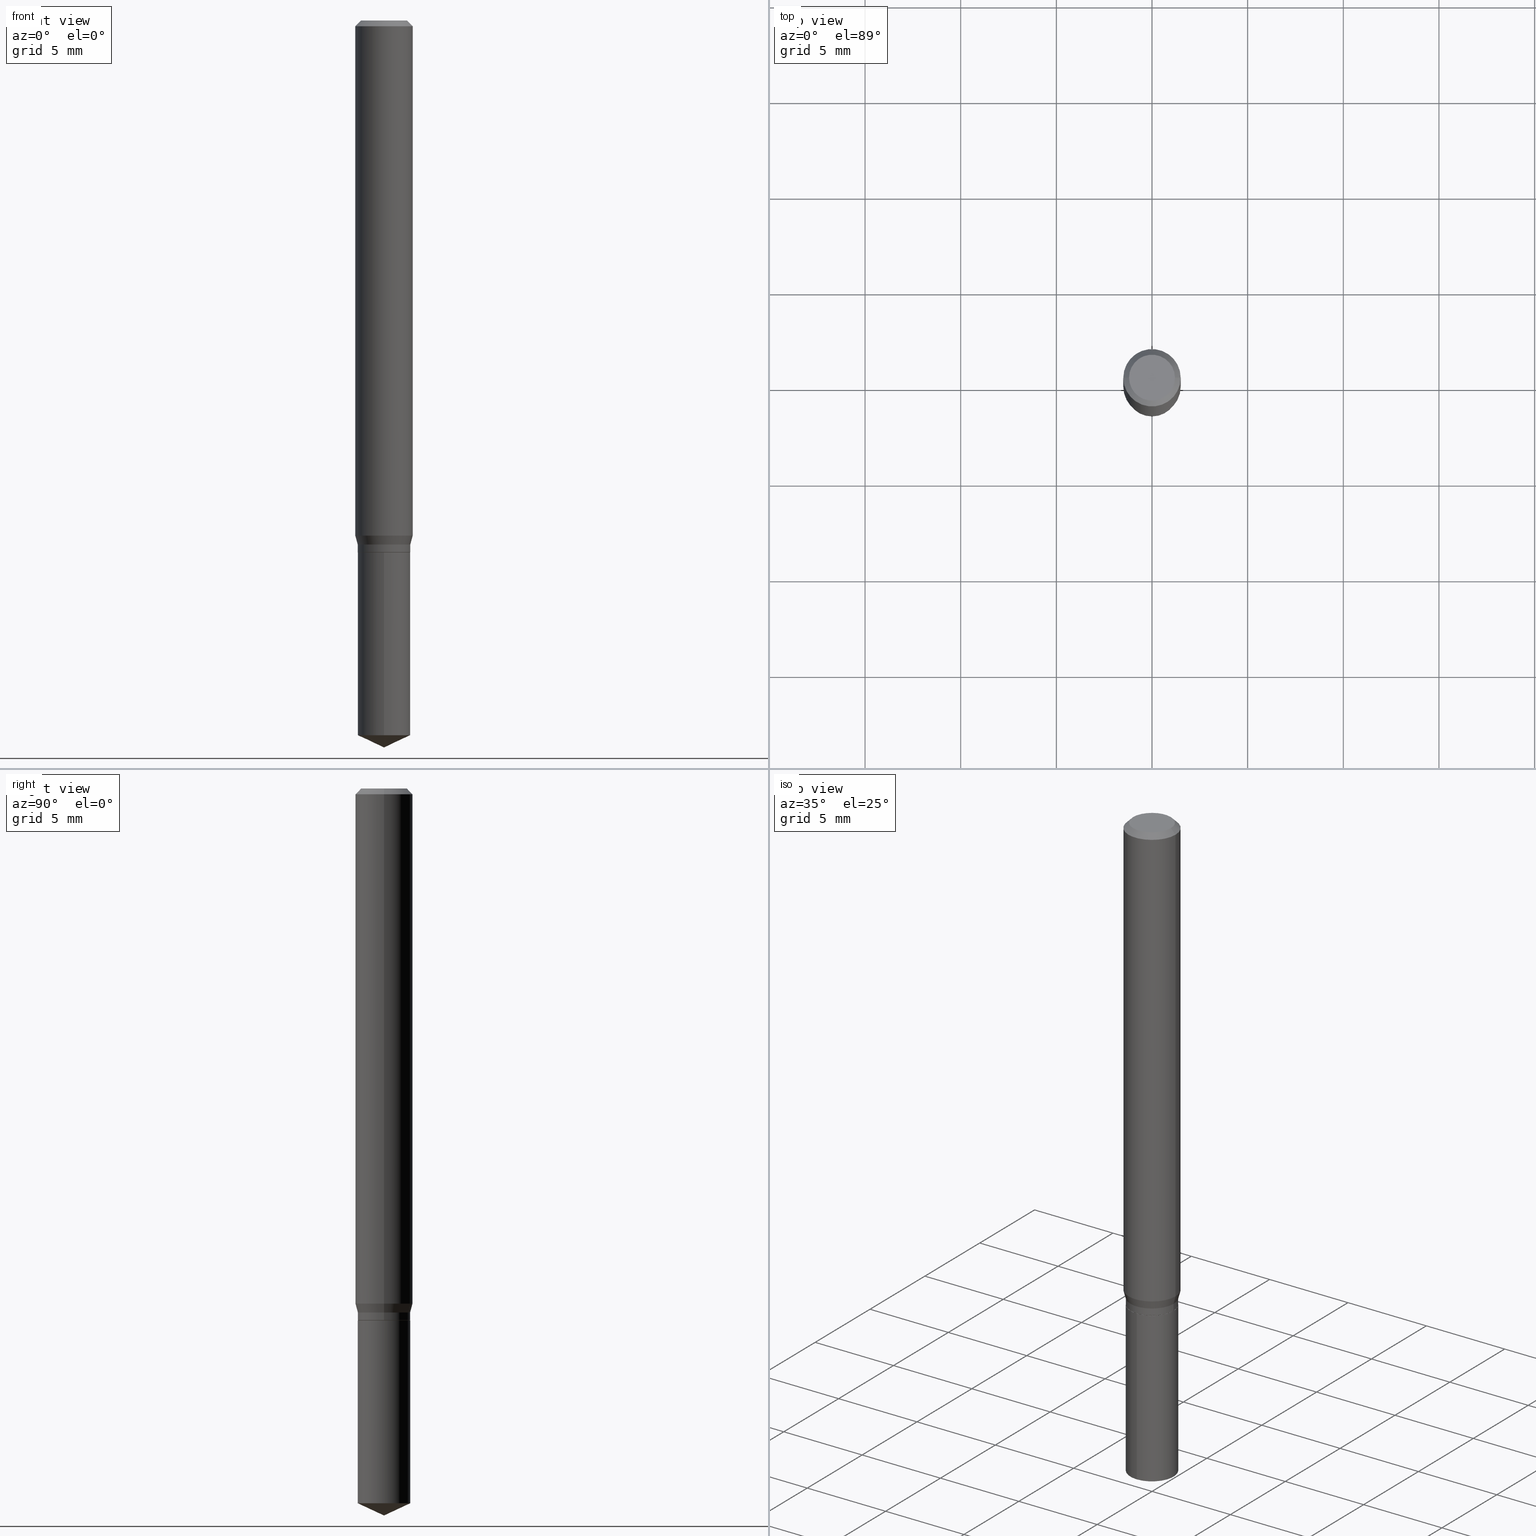
[diagram: canonical four-view strip — front | top / right | iso, engineering-drawing reading convention]
A machine part, canonical four-view strip (front | top / right | iso — engineering-drawing reading convention). The complete STEP part file that produces these views, byte-faithful:
ISO-10303-21;
HEADER;
FILE_DESCRIPTION (( 'STEP AP203' ),
    '1' );
FILE_NAME ('08216.STEP',
    '2024-04-24T13:49:24',
    ( '' ),
    ( '' ),
    'SwSTEP 2.0',
    'SolidWorks 2023',
    '' );
FILE_SCHEMA (( 'CONFIG_CONTROL_DESIGN' ));
ENDSEC;

DATA;
#1 = PERSON_AND_ORGANIZATION_ROLE ( 'design_supplier' ) ;
#2 = CARTESIAN_POINT ( 'NONE',  ( -0.05364999999999999630, -3.437570920454417208E-15, -1.094499999999999806 ) ) ;
#3 = EDGE_CURVE ( 'NONE', #401, #463, #435, .T. ) ;
#4 = PERSON_AND_ORGANIZATION ( #484, #432 ) ;
#5 = CARTESIAN_POINT ( 'NONE',  ( 2.636949013709432426E-29, -3.764864327674563691E-15, -1.078300000000000036 ) ) ;
#6 = VECTOR ( 'NONE', #230, 39.37007874015748854 ) ;
#7 = PERSON_AND_ORGANIZATION ( #484, #432 ) ;
#8 = DIRECTION ( 'NONE',  ( 1.000000000000000000, -6.982962677686266711E-15, 0.000000000000000000 ) ) ;
#9 = EDGE_CURVE ( 'NONE', #127, #132, #482, .T. ) ;
#10 = CARTESIAN_POINT ( 'NONE',  ( -9.261532836068574158E-28, 1.322424553111868898E-13, 37.87397874015748300 ) ) ;
#11 = CC_DESIGN_APPROVAL ( #72, ( #121 ) ) ;
#12 = DIRECTION ( 'NONE',  ( 1.000000000000000000, -6.982962677686261977E-15, 0.000000000000000000 ) ) ;
#13 = CONICAL_SURFACE ( 'NONE', #284, 84.42940631927480410, 1.134464013796318005 ) ;
#14 = CARTESIAN_POINT ( 'NONE',  ( 3.596874846011567459E-29, -5.135502916392647345E-15, -1.470849440310906919 ) ) ;
#15 = ORIENTED_EDGE ( 'NONE', *, *, #369, .F. ) ;
#16 = CIRCLE ( 'NONE', #116, 0.05904999999999999832 ) ;
#17 = DIRECTION ( 'NONE',  ( -2.445358326776455510E-29, 3.491639551644474585E-15, 1.000000000000000000 ) ) ;
#18 = CARTESIAN_POINT ( 'NONE',  ( 2.675342873966538993E-29, -3.819680584694400481E-15, -1.093999999999999861 ) ) ;
#19 = ORIENTED_EDGE ( 'NONE', *, *, #265, .T. ) ;
#20 = VECTOR ( 'NONE', #79, 39.37007874015748143 ) ;
#21 = CARTESIAN_POINT ( 'NONE',  ( 3.658500592690254185E-29, -5.223841933215297403E-15, -1.496099999999999985 ) ) ;
#22 = EDGE_CURVE ( 'NONE', #127, #447, #247, .T. ) ;
#23 = CYLINDRICAL_SURFACE ( 'NONE', #41, 0.05905000000000006771 ) ;
#24 = ORIENTED_EDGE ( 'NONE', *, *, #144, .T. ) ;
#25 = LOCAL_TIME ( 9, 49, 24.00000000000000000, #337 ) ;
#26 = EDGE_CURVE ( 'NONE', #172, #286, #216, .T. ) ;
#27 = ORIENTED_EDGE ( 'NONE', *, *, #46, .F. ) ;
#28 = LINE ( 'NONE', #436, #324 ) ;
#29 = CIRCLE ( 'NONE', #92, 0.05414999999999999675 ) ;
#30 = DIRECTION ( 'NONE',  ( 6.439704144417036664E-15, 0.9063077870366530453, 0.4226182617406928910 ) ) ;
#31 = VERTEX_POINT ( 'NONE', #146 ) ;
#32 = PERSON_AND_ORGANIZATION ( #484, #432 ) ;
#33 = VERTEX_POINT ( 'NONE', #260 ) ;
#34 = DIRECTION ( 'NONE',  ( 0.000000000000000000, 0.000000000000000000, 1.000000000000000000 ) ) ;
#35 = DIRECTION ( 'NONE',  ( -2.445358326776455510E-29, 3.491639551644474585E-15, 1.000000000000000000 ) ) ;
#36 = CONICAL_SURFACE ( 'NONE', #231, 0.05904999999999999832, 0.7853981633974452814 ) ;
#37 = AXIS2_PLACEMENT_3D ( 'NONE', #113, #451, #221 ) ;
#38 = LINE ( 'NONE', #189, #123 ) ;
#39 = FACE_OUTER_BOUND ( 'NONE', #210, .T. ) ;
#40 = EDGE_CURVE ( 'NONE', #33, #466, #52, .T. ) ;
#41 = AXIS2_PLACEMENT_3D ( 'NONE', #213, #90, #211 ) ;
#42 = CALENDAR_DATE ( 2024, 24, 4 ) ;
#43 = EDGE_CURVE ( 'NONE', #278, #172, #375, .T. ) ;
#44 = FACE_OUTER_BOUND ( 'NONE', #438, .T. ) ;
#45 = CARTESIAN_POINT ( 'NONE',  ( 2.675342873966538993E-29, -3.819680584694400481E-15, -1.093999999999999861 ) ) ;
#46 = EDGE_CURVE ( 'NONE', #233, #286, #16, .T. ) ;
#47 = CYLINDRICAL_SURFACE ( 'NONE', #114, 0.05414999999999999675 ) ;
#48 = LINE ( 'NONE', #387, #479 ) ;
#49 = CONICAL_SURFACE ( 'NONE', #194, 0.05364999999999999630, 0.7853981633974141952 ) ;
#50 = DIRECTION ( 'NONE',  ( 0.2588190451025215721, 1.565188264969619995E-15, 0.9659258262890679791 ) ) ;
#51 = EDGE_LOOP ( 'NONE', ( #212, #59, #19, #125 ) ) ;
#52 = CIRCLE ( 'NONE', #327, 0.05414999999999999675 ) ;
#53 = DIRECTION ( 'NONE',  ( -6.982962677686267499E-15, -1.000000000000000000, 3.520397390770434543E-15 ) ) ;
#54 = EDGE_LOOP ( 'NONE', ( #318, #335, #315 ) ) ;
#55 = CC_DESIGN_DATE_AND_TIME_ASSIGNMENT ( #297, #261, ( #111 ) ) ;
#56 = ADVANCED_FACE ( 'NONE', ( #44 ), #293, .F. ) ;
#57 = CARTESIAN_POINT ( 'NONE',  ( 2.676565608369631794E-29, -3.821426325363822773E-15, -1.094499999999999806 ) ) ;
#58 = PRODUCT_DEFINITION_SHAPE ( 'NONE', 'NONE',  #378 ) ;
#59 = ORIENTED_EDGE ( 'NONE', *, *, #331, .T. ) ;
#60 = CARTESIAN_POINT ( 'NONE',  ( 0.05904999999999999832, -4.463468013801466955E-16, -0.01181000000000007044 ) ) ;
#61 = ORIENTED_EDGE ( 'NONE', *, *, #416, .T. ) ;
#62 =( LENGTH_UNIT ( ) NAMED_UNIT ( * ) SI_UNIT ( $, .METRE. ) );
#63 = ORIENTED_EDGE ( 'NONE', *, *, #69, .T. ) ;
#64 = FACE_OUTER_BOUND ( 'NONE', #209, .T. ) ;
#65 = CONICAL_SURFACE ( 'NONE', #287, 0.05414999999999999675, 0.2617993877991502960 ) ;
#66 = ORIENTED_EDGE ( 'NONE', *, *, #26, .T. ) ;
#67 = AXIS2_PLACEMENT_3D ( 'NONE', #45, #373, #452 ) ;
#68 = ORIENTED_EDGE ( 'NONE', *, *, #395, .F. ) ;
#69 = EDGE_CURVE ( 'NONE', #463, #370, #468, .T. ) ;
#70 = PERSON_AND_ORGANIZATION ( #484, #432 ) ;
#71 = EDGE_LOOP ( 'NONE', ( #424, #389, #242, #138 ) ) ;
#72 = APPROVAL ( #407, 'UNSPECIFIED' ) ;
#73 = CARTESIAN_POINT ( 'NONE',  ( 0.000000000000000000, 0.000000000000000000, 0.000000000000000000 ) ) ;
#74 = DIRECTION ( 'NONE',  ( -2.445468806185136597E-29, 3.491481338843145583E-15, 1.000000000000000000 ) ) ;
#75 = CIRCLE ( 'NONE', #202, 0.05904999999999999832 ) ;
#76 = CONICAL_SURFACE ( 'NONE', #351, 0.05904999999999999832, 0.7853981633974452814 ) ;
#77 = CARTESIAN_POINT ( 'NONE',  ( 0.04724000000000000421, -3.852183633974369345E-16, -3.380025165621689721E-19 ) ) ;
#78 = PERSON_AND_ORGANIZATION ( #484, #432 ) ;
#79 = DIRECTION ( 'NONE',  ( -2.445358326776455790E-29, 3.491639551644474585E-15, 1.000000000000000000 ) ) ;
#80 = CARTESIAN_POINT ( 'NONE',  ( 3.847588914141209009E-16, 0.05414999999999617342, -1.094500000000000028 ) ) ;
#81 = DIRECTION ( 'NONE',  ( -2.445468806185136597E-29, 3.491481338843145583E-15, 1.000000000000000000 ) ) ;
#82 = ORIENTED_EDGE ( 'NONE', *, *, #187, .F. ) ;
#83 = DIRECTION ( 'NONE',  ( 1.000000000000000000, -6.982962677686261977E-15, 0.000000000000000000 ) ) ;
#84 = ORIENTED_EDGE ( 'NONE', *, *, #336, .T. ) ;
#85 = CARTESIAN_POINT ( 'NONE',  ( 2.592228605927693875E-29, -3.701015437498380438E-15, -1.060012951042911933 ) ) ;
#86 = AXIS2_PLACEMENT_3D ( 'NONE', #255, #98, #431 ) ;
#87 = DIRECTION ( 'NONE',  ( -6.982962677686265922E-15, -1.000000000000000000, 2.522481988609661405E-15 ) ) ;
#88 = FACE_OUTER_BOUND ( 'NONE', #71, .T. ) ;
#89 = ORIENTED_EDGE ( 'NONE', *, *, #267, .T. ) ;
#90 = DIRECTION ( 'NONE',  ( -2.445468806185136597E-29, 3.491481338843145583E-15, 1.000000000000000000 ) ) ;
#91 = VERTEX_POINT ( 'NONE', #77 ) ;
#92 = AXIS2_PLACEMENT_3D ( 'NONE', #271, #420, #277 ) ;
#93 = ADVANCED_FACE ( 'NONE', ( #106 ), #269, .T. ) ;
#94 = CARTESIAN_POINT ( 'NONE',  ( 2.636949013709432426E-29, -3.764864327674563691E-15, -1.078300000000000036 ) ) ;
#95 = ORIENTED_EDGE ( 'NONE', *, *, #46, .T. ) ;
#96 = DIRECTION ( 'NONE',  ( -2.445468806185136877E-29, 3.491481338843145188E-15, 1.000000000000000000 ) ) ;
#97 = EDGE_LOOP ( 'NONE', ( #477, #171, #205, #201 ) ) ;
#98 = DIRECTION ( 'NONE',  ( -2.445468806185136597E-29, 3.491481338843145583E-15, 1.000000000000000000 ) ) ;
#99 = EDGE_LOOP ( 'NONE', ( #169, #24 ) ) ;
#100 = LINE ( 'NONE', #60, #296 ) ;
#101 = AXIS2_PLACEMENT_3D ( 'NONE', #10, #17, #53 ) ;
#102 = ORIENTED_EDGE ( 'NONE', *, *, #336, .F. ) ;
#103 = EDGE_CURVE ( 'NONE', #463, #285, #457, .T. ) ;
#104 = SHAPE_DEFINITION_REPRESENTATION ( #58, #191 ) ;
#105 = PRODUCT ( '08216', '08216', '', ( #227 ) ) ;
#106 = FACE_OUTER_BOUND ( 'NONE', #97, .T. ) ;
#107 = EDGE_CURVE ( 'NONE', #132, #256, #408, .T. ) ;
#108 = DIRECTION ( 'NONE',  ( 1.000000000000000000, 0.000000000000000000, 0.000000000000000000 ) ) ;
#109 = DIRECTION ( 'NONE',  ( -6.982962677686265922E-15, -1.000000000000000000, 2.522481988609661405E-15 ) ) ;
#110 = CC_DESIGN_SECURITY_CLASSIFICATION ( #111, ( #121 ) ) ;
#111 = SECURITY_CLASSIFICATION ( '', '', #149 ) ;
#112 = APPROVAL_DATE_TIME ( #343, #72 ) ;
#113 = CARTESIAN_POINT ( 'NONE',  ( 2.676565608369631794E-29, -3.821426325363822773E-15, -1.094499999999999806 ) ) ;
#114 = AXIS2_PLACEMENT_3D ( 'NONE', #198, #347, #282 ) ;
#115 = COORDINATED_UNIVERSAL_TIME_OFFSET ( 5, 0, .BEHIND. ) ;
#116 = AXIS2_PLACEMENT_3D ( 'NONE', #257, #450, #8 ) ;
#117 = DIRECTION ( 'NONE',  ( 1.000000000000000000, -6.982962677686271444E-15, 0.000000000000000000 ) ) ;
#118 = DIMENSIONAL_EXPONENTS ( 1.000000000000000000, 0.000000000000000000, 0.000000000000000000, 0.000000000000000000, 0.000000000000000000, 0.000000000000000000, 0.000000000000000000 ) ;
#119 = APPROVAL_DATE_TIME ( #147, #443 ) ;
#120 = CARTESIAN_POINT ( 'NONE',  ( -0.05364999999999999630, -3.440220147628528803E-15, -1.094499999999999806 ) ) ;
#121 = PRODUCT_DEFINITION_FORMATION_WITH_SPECIFIED_SOURCE ( 'ANY', '', #105, .NOT_KNOWN. ) ;
#122 = CARTESIAN_POINT ( 'NONE',  ( 2.676565608369631794E-29, -3.821426325363822773E-15, -1.094499999999999806 ) ) ;
#123 = VECTOR ( 'NONE', #425, 39.37007874015748143 ) ;
#124 = LINE ( 'NONE', #459, #262 ) ;
#125 = ORIENTED_EDGE ( 'NONE', *, *, #43, .F. ) ;
#126 = DIRECTION ( 'NONE',  ( -2.445468806185136877E-29, 3.491481338843145188E-15, 1.000000000000000000 ) ) ;
#127 = VERTEX_POINT ( 'NONE', #266 ) ;
#128 = PLANE ( 'NONE',  #184 ) ;
#129 = EDGE_CURVE ( 'NONE', #256, #466, #338, .T. ) ;
#130 = DIRECTION ( 'NONE',  ( -2.445358326776455510E-29, 3.491639551644474585E-15, 1.000000000000000000 ) ) ;
#131 = FACE_OUTER_BOUND ( 'NONE', #235, .T. ) ;
#132 = VERTEX_POINT ( 'NONE', #2 ) ;
#133 = ADVANCED_FACE ( 'NONE', ( #381 ), #490, .T. ) ;
#134 =( NAMED_UNIT ( * ) PLANE_ANGLE_UNIT ( ) SI_UNIT ( $, .RADIAN. ) );
#135 = EDGE_LOOP ( 'NONE', ( #283, #179 ) ) ;
#136 = AXIS2_PLACEMENT_3D ( 'NONE', #14, #393, #239 ) ;
#137 =( NAMED_UNIT ( * ) SI_UNIT ( $, .STERADIAN. ) SOLID_ANGLE_UNIT ( ) );
#138 = ORIENTED_EDGE ( 'NONE', *, *, #267, .F. ) ;
#139 = AXIS2_PLACEMENT_3D ( 'NONE', #224, #35, #109 ) ;
#140 = LINE ( 'NONE', #168, #422 ) ;
#141 = ORIENTED_EDGE ( 'NONE', *, *, #26, .F. ) ;
#142 = DIRECTION ( 'NONE',  ( -2.445358326776455510E-29, 3.491639551644474585E-15, 1.000000000000000000 ) ) ;
#143 = CARTESIAN_POINT ( 'NONE',  ( 0.05905000000000006771, -4.123439461173745257E-16, 2.879382386107503723E-30 ) ) ;
#144 = EDGE_CURVE ( 'NONE', #91, #31, #405, .T. ) ;
#145 = PERSON_AND_ORGANIZATION ( #484, #432 ) ;
#146 = CARTESIAN_POINT ( 'NONE',  ( -0.04724000000000000421, 3.504923541997677355E-16, -3.380025165670481712E-19 ) ) ;
#147 = DATE_AND_TIME ( #156, #259 ) ;
#148 = FACE_OUTER_BOUND ( 'NONE', #332, .T. ) ;
#149 = SECURITY_CLASSIFICATION_LEVEL ( 'unclassified' ) ;
#150 = CARTESIAN_POINT ( 'NONE',  ( 8.265746106709734507E-48, -1.180129479067563789E-33, -3.380025165646692144E-19 ) ) ;
#151 = LOCAL_TIME ( 9, 49, 24.00000000000000000, #454 ) ;
#152 = CC_DESIGN_PERSON_AND_ORGANIZATION_ASSIGNMENT ( #180, #294, ( #105 ) ) ;
#153 = DIRECTION ( 'NONE',  ( -2.445358326776455510E-29, 3.491639551644474585E-15, 1.000000000000000000 ) ) ;
#154 = AXIS2_PLACEMENT_3D ( 'NONE', #18, #203, #352 ) ;
#155 = EDGE_CURVE ( 'NONE', #447, #256, #453, .T. ) ;
#156 = CALENDAR_DATE ( 2024, 24, 4 ) ;
#157 = CARTESIAN_POINT ( 'NONE',  ( 0.000000000000000000, 0.000000000000000000, 0.000000000000000000 ) ) ;
#158 = FACE_OUTER_BOUND ( 'NONE', #54, .T. ) ;
#159 = ADVANCED_FACE ( 'NONE', ( #39 ), #193, .T. ) ;
#160 = CARTESIAN_POINT ( 'NONE',  ( 0.05904999999999999832, -4.535783407291118600E-16, -0.01181000000000007044 ) ) ;
#161 = AXIS2_PLACEMENT_3D ( 'NONE', #73, #301, #226 ) ;
#162 = DIRECTION ( 'NONE',  ( -2.445468806185136597E-29, 3.491481338843145583E-15, 1.000000000000000000 ) ) ;
#163 = CLOSED_SHELL ( 'NONE', ( #222, #167, #445, #439, #93, #345, #419, #133, #178, #302, #56, #229 ) ) ;
#164 = DIRECTION ( 'NONE',  ( 1.000000000000000000, -6.982962677686265133E-15, 0.000000000000000000 ) ) ;
#165 = APPROVAL_PERSON_ORGANIZATION ( #78, #276, #219 ) ;
#166 = CARTESIAN_POINT ( 'NONE',  ( 4.132873053354867254E-48, -5.900647395337818946E-34, -1.690012582823346072E-19 ) ) ;
#167 = ADVANCED_FACE ( 'NONE', ( #148 ), #36, .T. ) ;
#168 = CARTESIAN_POINT ( 'NONE',  ( -0.05905000000000006771, 4.195754854663396409E-16, -2.904631170795525045E-30 ) ) ;
#169 = ORIENTED_EDGE ( 'NONE', *, *, #369, .T. ) ;
#170 = CARTESIAN_POINT ( 'NONE',  ( 0.05414999999999999675, -4.197808013691111565E-15, -1.093999999999999861 ) ) ;
#171 = ORIENTED_EDGE ( 'NONE', *, *, #129, .T. ) ;
#172 = VERTEX_POINT ( 'NONE', #344 ) ;
#173 = AXIS2_PLACEMENT_3D ( 'NONE', #157, #418, #305 ) ;
#174 = CC_DESIGN_PERSON_AND_ORGANIZATION_ASSIGNMENT ( #145, #410, ( #121 ) ) ;
#175 = ORIENTED_EDGE ( 'NONE', *, *, #155, .F. ) ;
#176 = AXIS2_PLACEMENT_3D ( 'NONE', #319, #475, #403 ) ;
#177 = APPLICATION_PROTOCOL_DEFINITION ( 'international standard', 'config_control_design', 1994, #328 ) ;
#178 = ADVANCED_FACE ( 'NONE', ( #195 ), #76, .T. ) ;
#179 = ORIENTED_EDGE ( 'NONE', *, *, #395, .T. ) ;
#180 = PERSON_AND_ORGANIZATION ( #484, #432 ) ;
#181 = EDGE_CURVE ( 'NONE', #31, #233, #38, .T. ) ;
#182 = VERTEX_POINT ( 'NONE', #346 ) ;
#183 = DATE_AND_TIME ( #42, #474 ) ;
#184 = AXIS2_PLACEMENT_3D ( 'NONE', #57, #354, #349 ) ;
#185 = EDGE_CURVE ( 'NONE', #370, #463, #325, .T. ) ;
#186 = DIRECTION ( 'NONE',  ( 2.445468806185136597E-29, -3.491481338843145583E-15, -1.000000000000000000 ) ) ;
#187 = EDGE_CURVE ( 'NONE', #172, #278, #412, .T. ) ;
#188 = APPLICATION_PROTOCOL_DEFINITION ( 'international standard', 'config_control_design', 1994, #290 ) ;
#189 = CARTESIAN_POINT ( 'NONE',  ( -0.05904999999999999832, 3.711095515056362547E-16, -0.01181000000000007044 ) ) ;
#190 = CARTESIAN_POINT ( 'NONE',  ( 2.888098660104663766E-31, -4.123439461173779647E-17, -0.01181000000000007044 ) ) ;
#191 = ADVANCED_BREP_SHAPE_REPRESENTATION ( '08216', ( #380, #399, #251 ), #355 ) ;
#192 = APPROVAL_DATE_TIME ( #183, #276 ) ;
#193 = CYLINDRICAL_SURFACE ( 'NONE', #139, 0.05414999999999999675 ) ;
#194 = AXIS2_PLACEMENT_3D ( 'NONE', #309, #81, #83 ) ;
#195 = FACE_OUTER_BOUND ( 'NONE', #421, .T. ) ;
#196 = EDGE_CURVE ( 'NONE', #447, #33, #124, .T. ) ;
#197 = EDGE_CURVE ( 'NONE', #182, #285, #386, .T. ) ;
#198 = CARTESIAN_POINT ( 'NONE',  ( 0.000000000000000000, 0.000000000000000000, 0.000000000000000000 ) ) ;
#199 = ORIENTED_EDGE ( 'NONE', *, *, #321, .F. ) ;
#200 = FACE_OUTER_BOUND ( 'NONE', #442, .T. ) ;
#201 = ORIENTED_EDGE ( 'NONE', *, *, #196, .F. ) ;
#202 = AXIS2_PLACEMENT_3D ( 'NONE', #430, #384, #232 ) ;
#203 = DIRECTION ( 'NONE',  ( -2.445468806185136597E-29, 3.491481338843145583E-15, 1.000000000000000000 ) ) ;
#204 = VECTOR ( 'NONE', #415, 39.37007874015748143 ) ;
#205 = ORIENTED_EDGE ( 'NONE', *, *, #40, .F. ) ;
#206 = FACE_OUTER_BOUND ( 'NONE', #135, .T. ) ;
#207 = ORIENTED_EDGE ( 'NONE', *, *, #9, .T. ) ;
#208 = CYLINDRICAL_SURFACE ( 'NONE', #371, 0.05414999999999999675 ) ;
#209 = EDGE_LOOP ( 'NONE', ( #350, #61, #102, #141 ) ) ;
#210 = EDGE_LOOP ( 'NONE', ( #406, #361, #240, #311 ) ) ;
#211 = DIRECTION ( 'NONE',  ( 1.000000000000000000, -6.982962677686266711E-15, 4.876176775795936353E-29 ) ) ;
#212 = ORIENTED_EDGE ( 'NONE', *, *, #353, .F. ) ;
#213 = CARTESIAN_POINT ( 'NONE',  ( 0.000000000000000000, 0.000000000000000000, 0.000000000000000000 ) ) ;
#214 = ORIENTED_EDGE ( 'NONE', *, *, #331, .F. ) ;
#215 = DIRECTION ( 'NONE',  ( -2.445468806185136597E-29, 3.491481338843145583E-15, 1.000000000000000000 ) ) ;
#216 = LINE ( 'NONE', #143, #204 ) ;
#217 = CALENDAR_DATE ( 2024, 24, 4 ) ;
#218 = ORIENTED_EDGE ( 'NONE', *, *, #478, .F. ) ;
#219 = APPROVAL_ROLE ( '' ) ;
#220 = CC_DESIGN_APPROVAL ( #276, ( #378 ) ) ;
#221 = DIRECTION ( 'NONE',  ( 1.000000000000000000, -6.982962677686265922E-15, 4.876176775795935793E-29 ) ) ;
#222 = ADVANCED_FACE ( 'NONE', ( #465 ), #316, .T. ) ;
#223 = AXIS2_PLACEMENT_3D ( 'NONE', #122, #273, #12 ) ;
#224 = CARTESIAN_POINT ( 'NONE',  ( 2.676565608369631794E-29, -3.821426325363822773E-15, -1.094499999999999806 ) ) ;
#225 = CLOSED_SHELL ( 'NONE', ( #159, #329, #299, #458, #307 ) ) ;
#226 = DIRECTION ( 'NONE',  ( 1.000000000000000000, -6.982962677686266711E-15, 4.876176775795936353E-29 ) ) ;
#227 = MECHANICAL_CONTEXT ( 'NONE', #328, 'mechanical' ) ;
#228 = DIRECTION ( 'NONE',  ( -2.445468806185136877E-29, 3.491481338843145188E-15, 1.000000000000000000 ) ) ;
#229 = ADVANCED_FACE ( 'NONE', ( #88 ), #49, .T. ) ;
#230 = DIRECTION ( 'NONE',  ( -0.7071067811865232589, 7.493145998870265808E-15, 0.7071067811865715536 ) ) ;
#231 = AXIS2_PLACEMENT_3D ( 'NONE', #190, #374, #455 ) ;
#232 = DIRECTION ( 'NONE',  ( 1.000000000000000000, -6.982962677686266711E-15, 0.000000000000000000 ) ) ;
#233 = VERTEX_POINT ( 'NONE', #461 ) ;
#234 = CARTESIAN_POINT ( 'NONE',  ( 3.847588914141302193E-16, 0.05414999999999617342, -1.094500000000000028 ) ) ;
#235 = EDGE_LOOP ( 'NONE', ( #433, #486, #82, #289 ) ) ;
#236 = CARTESIAN_POINT ( 'NONE',  ( -0.05414999999999999675, -3.407513564770387612E-15, -1.093999999999999861 ) ) ;
#237 = ORIENTED_EDGE ( 'NONE', *, *, #416, .F. ) ;
#238 = AXIS2_PLACEMENT_3D ( 'NONE', #428, #310, #87 ) ;
#239 = DIRECTION ( 'NONE',  ( -6.982962677686265922E-15, -1.000000000000000000, 5.044963977219322809E-15 ) ) ;
#240 = ORIENTED_EDGE ( 'NONE', *, *, #197, .F. ) ;
#241 = FACE_OUTER_BOUND ( 'NONE', #99, .T. ) ;
#242 = ORIENTED_EDGE ( 'NONE', *, *, #22, .T. ) ;
#243 = DIRECTION ( 'NONE',  ( -2.445358326776455510E-29, 3.491639551644474585E-15, 1.000000000000000000 ) ) ;
#244 = ORIENTED_EDGE ( 'NONE', *, *, #181, .F. ) ;
#245 = AXIS2_PLACEMENT_3D ( 'NONE', #275, #314, #423 ) ;
#246 = FACE_OUTER_BOUND ( 'NONE', #280, .T. ) ;
#247 = LINE ( 'NONE', #326, #437 ) ;
#248 = DIRECTION ( 'NONE',  ( -6.328713451373380423E-15, -0.9063077870366499367, 0.4226182617406991082 ) ) ;
#249 = CARTESIAN_POINT ( 'NONE',  ( 3.658744552762151624E-29, -5.223495605393188568E-15, -1.496099999999999985 ) ) ;
#250 = CC_DESIGN_PERSON_AND_ORGANIZATION_ASSIGNMENT ( #4, #341, ( #111 ) ) ;
#251 = AXIS2_PLACEMENT_3D ( 'NONE', #258, #34, #108 ) ;
#252 = CARTESIAN_POINT ( 'NONE',  ( 3.658500592690254185E-29, -5.223841933215297403E-15, -1.496099999999999985 ) ) ;
#253 = ORIENTED_EDGE ( 'NONE', *, *, #181, .T. ) ;
#254 = CONICAL_SURFACE ( 'NONE', #101, 84.42940631927480410, 1.134464013796318005 ) ;
#255 = CARTESIAN_POINT ( 'NONE',  ( 8.265746106709734507E-48, -1.180129479067563789E-33, -3.380025165646692144E-19 ) ) ;
#256 = VERTEX_POINT ( 'NONE', #236 ) ;
#257 = CARTESIAN_POINT ( 'NONE',  ( 2.888098660104663766E-31, -4.123439461173779647E-17, -0.01181000000000007044 ) ) ;
#258 = CARTESIAN_POINT ( 'NONE',  ( 0.000000000000000000, 0.000000000000000000, 0.000000000000000000 ) ) ;
#259 = LOCAL_TIME ( 9, 49, 24.00000000000000000, #449 ) ;
#260 = CARTESIAN_POINT ( 'NONE',  ( 0.05414999999999999675, -4.142991756671274775E-15, -1.078300000000000036 ) ) ;
#261 = DATE_TIME_ROLE ( 'classification_date' ) ;
#262 = VECTOR ( 'NONE', #126, 39.37007874015748143 ) ;
#263 = CARTESIAN_POINT ( 'NONE',  ( -0.05414999999999999675, 3.847588914140942275E-16, -2.663603351373031609E-30 ) ) ;
#264 = CIRCLE ( 'NONE', #154, 0.05414999999999999675 ) ;
#265 = EDGE_CURVE ( 'NONE', #33, #172, #48, .T. ) ;
#266 = CARTESIAN_POINT ( 'NONE',  ( 0.05364999999999999630, -4.196062273021690850E-15, -1.094499999999999806 ) ) ;
#267 = EDGE_CURVE ( 'NONE', #256, #447, #264, .T. ) ;
#268 = DATE_TIME_ROLE ( 'creation_date' ) ;
#269 = CYLINDRICAL_SURFACE ( 'NONE', #173, 0.05414999999999999675 ) ;
#270 = DESIGN_CONTEXT ( 'detailed design', #290, 'design' ) ;
#271 = CARTESIAN_POINT ( 'NONE',  ( 2.636949013709432426E-29, -3.764864327674563691E-15, -1.078300000000000036 ) ) ;
#272 = DIRECTION ( 'NONE',  ( 2.438088387897960049E-29, -3.491481338843145188E-15, -1.000000000000000000 ) ) ;
#273 = DIRECTION ( 'NONE',  ( -2.445468806185136597E-29, 3.491481338843145583E-15, 1.000000000000000000 ) ) ;
#274 = ORIENTED_EDGE ( 'NONE', *, *, #478, .T. ) ;
#275 = CARTESIAN_POINT ( 'NONE',  ( 2.676565608369631794E-29, -3.821426325363822773E-15, -1.094499999999999806 ) ) ;
#276 = APPROVAL ( #304, 'UNSPECIFIED' ) ;
#277 = DIRECTION ( 'NONE',  ( 1.000000000000000000, -6.982962677686271444E-15, 0.000000000000000000 ) ) ;
#278 = VERTEX_POINT ( 'NONE', #392 ) ;
#279 = DIRECTION ( 'NONE',  ( 1.000000000000000000, -6.982962677686271444E-15, 0.000000000000000000 ) ) ;
#280 = EDGE_LOOP ( 'NONE', ( #323, #63, #394, #68 ) ) ;
#281 = CC_DESIGN_APPROVAL ( #443, ( #111 ) ) ;
#282 = DIRECTION ( 'NONE',  ( 1.000000000000000000, -6.982962677686266711E-15, 4.876176775795935793E-29 ) ) ;
#283 = ORIENTED_EDGE ( 'NONE', *, *, #197, .T. ) ;
#284 = AXIS2_PLACEMENT_3D ( 'NONE', #469, #130, #306 ) ;
#285 = VERTEX_POINT ( 'NONE', #234 ) ;
#286 = VERTEX_POINT ( 'NONE', #160 ) ;
#287 = AXIS2_PLACEMENT_3D ( 'NONE', #402, #215, #279 ) ;
#288 = CARTESIAN_POINT ( 'NONE',  ( -3.781274289966845089E-16, -0.05415000000000382008, -1.094499999999999806 ) ) ;
#289 = ORIENTED_EDGE ( 'NONE', *, *, #265, .F. ) ;
#290 = APPLICATION_CONTEXT ( 'configuration controlled 3d designs of mechanical parts and assemblies' ) ;
#291 = VECTOR ( 'NONE', #228, 39.37007874015748143 ) ;
#292 = PERSON_AND_ORGANIZATION ( #484, #432 ) ;
#293 = PLANE ( 'NONE',  #37 ) ;
#294 = PERSON_AND_ORGANIZATION_ROLE ( 'design_owner' ) ;
#295 = DIRECTION ( 'NONE',  ( -1.000000000000000000, 6.982962677686266711E-15, 0.000000000000000000 ) ) ;
#296 = VECTOR ( 'NONE', #485, 39.37007874015748143 ) ;
#297 = DATE_AND_TIME ( #489, #25 ) ;
#298 = DIRECTION ( 'NONE',  ( 1.000000000000000000, -6.982962677686266711E-15, 4.876185090822587894E-29 ) ) ;
#299 = ADVANCED_FACE ( 'NONE', ( #200 ), #254, .T. ) ;
#300 = CIRCLE ( 'NONE', #86, 0.04724000000000000421 ) ;
#301 = DIRECTION ( 'NONE',  ( -2.445468806185136597E-29, 3.491481338843145583E-15, 1.000000000000000000 ) ) ;
#302 = ADVANCED_FACE ( 'NONE', ( #241 ), #312, .F. ) ;
#303 = UNCERTAINTY_MEASURE_WITH_UNIT (LENGTH_MEASURE( 1.000000000000000082E-05 ), #473, 'distance_accuracy_value', 'NONE');
#304 = APPROVAL_STATUS ( 'not_yet_approved' ) ;
#305 = DIRECTION ( 'NONE',  ( 1.000000000000000000, -6.982962677686266711E-15, 4.876176775795935793E-29 ) ) ;
#306 = DIRECTION ( 'NONE',  ( -6.982962677686267499E-15, -1.000000000000000000, 3.520397390770434543E-15 ) ) ;
#307 = ADVANCED_FACE ( 'NONE', ( #206 ), #128, .F. ) ;
#308 = CONICAL_SURFACE ( 'NONE', #385, 0.05414999999999999675, 0.2617993877991502960 ) ;
#309 = CARTESIAN_POINT ( 'NONE',  ( 2.676565608369631794E-29, -3.821426325363822773E-15, -1.094499999999999806 ) ) ;
#310 = DIRECTION ( 'NONE',  ( -2.445358326776455510E-29, 3.491639551644474585E-15, 1.000000000000000000 ) ) ;
#311 = ORIENTED_EDGE ( 'NONE', *, *, #409, .F. ) ;
#312 = PLANE ( 'NONE',  #397 ) ;
#313 = EDGE_LOOP ( 'NONE', ( #207, #398, #175, #472 ) ) ;
#314 = DIRECTION ( 'NONE',  ( -2.445468806185136597E-29, 3.491481338843145583E-15, 1.000000000000000000 ) ) ;
#315 = ORIENTED_EDGE ( 'NONE', *, *, #185, .F. ) ;
#316 = CONICAL_SURFACE ( 'NONE', #223, 0.05364999999999999630, 0.7853981633974141952 ) ;
#317 = LINE ( 'NONE', #288, #462 ) ;
#318 = ORIENTED_EDGE ( 'NONE', *, *, #388, .F. ) ;
#319 = CARTESIAN_POINT ( 'NONE',  ( 2.676565608369631794E-29, -3.821426325363822773E-15, -1.094499999999999806 ) ) ;
#320 = APPROVAL_PERSON_ORGANIZATION ( #32, #72, #376 ) ;
#321 = EDGE_CURVE ( 'NONE', #132, #127, #460, .T. ) ;
#322 = DIRECTION ( 'NONE',  ( -0.2588190451025215721, 5.211531920934551831E-15, 0.9659258262890679791 ) ) ;
#323 = ORIENTED_EDGE ( 'NONE', *, *, #103, .F. ) ;
#324 = VECTOR ( 'NONE', #322, 39.37007874015748143 ) ;
#325 = CIRCLE ( 'NONE', #136, 0.05414999999999999675 ) ;
#326 = CARTESIAN_POINT ( 'NONE',  ( 0.05364999999999999630, -4.196062273021690850E-15, -1.094499999999999806 ) ) ;
#327 = AXIS2_PLACEMENT_3D ( 'NONE', #5, #74, #117 ) ;
#328 = APPLICATION_CONTEXT ( 'configuration controlled 3d designs of mechanical parts and assemblies' ) ;
#329 = ADVANCED_FACE ( 'NONE', ( #158 ), #13, .T. ) ;
#330 = DIRECTION ( 'NONE',  ( -2.445358326776455790E-29, 3.491639551644474585E-15, 1.000000000000000000 ) ) ;
#331 = EDGE_CURVE ( 'NONE', #466, #33, #29, .T. ) ;
#332 = EDGE_LOOP ( 'NONE', ( #356, #274, #84, #244 ) ) ;
#333 = LOCAL_TIME ( 9, 49, 24.00000000000000000, #115 ) ;
#334 = COORDINATED_UNIVERSAL_TIME_OFFSET ( 5, 0, .BEHIND. ) ;
#335 = ORIENTED_EDGE ( 'NONE', *, *, #3, .T. ) ;
#336 = EDGE_CURVE ( 'NONE', #286, #233, #75, .T. ) ;
#337 = COORDINATED_UNIVERSAL_TIME_OFFSET ( 5, 0, .BEHIND. ) ;
#338 = LINE ( 'NONE', #263, #291 ) ;
#339 = PERSON_AND_ORGANIZATION_ROLE ( 'creator' ) ;
#340 = CARTESIAN_POINT ( 'NONE',  ( 3.596874846011567459E-29, -5.135502916392647345E-15, -1.470849440310906919 ) ) ;
#341 = PERSON_AND_ORGANIZATION_ROLE ( 'classification_officer' ) ;
#342 = DIRECTION ( 'NONE',  ( 1.000000000000000000, -6.982962677686265133E-15, 0.000000000000000000 ) ) ;
#343 = DATE_AND_TIME ( #487, #151 ) ;
#344 = CARTESIAN_POINT ( 'NONE',  ( 0.05905000000000013016, -4.113359383615755359E-15, -1.060012951042911933 ) ) ;
#345 = ADVANCED_FACE ( 'NONE', ( #382 ), #47, .T. ) ;
#346 = CARTESIAN_POINT ( 'NONE',  ( -3.781274289966845089E-16, -0.05415000000000382008, -1.094499999999999806 ) ) ;
#347 = DIRECTION ( 'NONE',  ( -2.445468806185136597E-29, 3.491481338843145583E-15, 1.000000000000000000 ) ) ;
#348 = EDGE_LOOP ( 'NONE', ( #237, #363, #66, #27 ) ) ;
#349 = DIRECTION ( 'NONE',  ( 6.982962677686265922E-15, 1.000000000000000000, -3.491639551644474585E-15 ) ) ;
#350 = ORIENTED_EDGE ( 'NONE', *, *, #187, .T. ) ;
#351 = AXIS2_PLACEMENT_3D ( 'NONE', #488, #186, #295 ) ;
#352 = DIRECTION ( 'NONE',  ( 1.000000000000000000, -6.982962677686261977E-15, 0.000000000000000000 ) ) ;
#353 = EDGE_CURVE ( 'NONE', #466, #278, #28, .T. ) ;
#354 = DIRECTION ( 'NONE',  ( 2.445358326776454949E-29, -3.491639551644474585E-15, -1.000000000000000000 ) ) ;
#355 =( GEOMETRIC_REPRESENTATION_CONTEXT ( 3 ) GLOBAL_UNCERTAINTY_ASSIGNED_CONTEXT ( ( #303 ) ) GLOBAL_UNIT_ASSIGNED_CONTEXT ( ( #473, #134, #137 ) ) REPRESENTATION_CONTEXT ( 'NONE', 'WORKASPACE' ) );
#356 = ORIENTED_EDGE ( 'NONE', *, *, #144, .F. ) ;
#357 = CARTESIAN_POINT ( 'NONE',  ( 2.676565608369631794E-29, -3.821426325363822773E-15, -1.094499999999999806 ) ) ;
#358 = ORIENTED_EDGE ( 'NONE', *, *, #129, .F. ) ;
#359 = CIRCLE ( 'NONE', #429, 0.05414999999999999675 ) ;
#360 = DIRECTION ( 'NONE',  ( 1.000000000000000000, -6.982962677686271444E-15, 0.000000000000000000 ) ) ;
#361 = ORIENTED_EDGE ( 'NONE', *, *, #103, .T. ) ;
#362 = LENGTH_MEASURE_WITH_UNIT ( LENGTH_MEASURE( 0.02539999999999999897 ), #62 );
#363 = ORIENTED_EDGE ( 'NONE', *, *, #43, .T. ) ;
#364 = ORIENTED_EDGE ( 'NONE', *, *, #388, .T. ) ;
#365 = VECTOR ( 'NONE', #248, 39.37007874015748854 ) ;
#366 = FACE_OUTER_BOUND ( 'NONE', #51, .T. ) ;
#367 = ORIENTED_EDGE ( 'NONE', *, *, #3, .F. ) ;
#368 = DATE_AND_TIME ( #217, #333 ) ;
#369 = EDGE_CURVE ( 'NONE', #31, #91, #300, .T. ) ;
#370 = VERTEX_POINT ( 'NONE', #481 ) ;
#371 = AXIS2_PLACEMENT_3D ( 'NONE', #400, #243, #446 ) ;
#372 = APPROVAL_ROLE ( '' ) ;
#373 = DIRECTION ( 'NONE',  ( -2.445468806185136597E-29, 3.491481338843145583E-15, 1.000000000000000000 ) ) ;
#374 = DIRECTION ( 'NONE',  ( 2.445468806185136597E-29, -3.491481338843145583E-15, -1.000000000000000000 ) ) ;
#375 = CIRCLE ( 'NONE', #464, 0.05905000000000013016 ) ;
#376 = APPROVAL_ROLE ( '' ) ;
#377 = DIRECTION ( 'NONE',  ( -2.445468806185136597E-29, 3.491481338843145583E-15, 1.000000000000000000 ) ) ;
#378 = PRODUCT_DEFINITION ( 'UNKNOWN', '', #121, #270 ) ;
#379 = DIRECTION ( 'NONE',  ( -6.982962677686265922E-15, -1.000000000000000000, 5.044963977219322809E-15 ) ) ;
#380 = MANIFOLD_SOLID_BREP ( 'Body-Move/Copy2[1]', #225 ) ;
#381 = FACE_OUTER_BOUND ( 'NONE', #348, .T. ) ;
#382 = FACE_OUTER_BOUND ( 'NONE', #404, .T. ) ;
#383 = ORIENTED_EDGE ( 'NONE', *, *, #69, .F. ) ;
#384 = DIRECTION ( 'NONE',  ( -2.445468806185136597E-29, 3.491481338843145583E-15, 1.000000000000000000 ) ) ;
#385 = AXIS2_PLACEMENT_3D ( 'NONE', #94, #471, #360 ) ;
#386 = CIRCLE ( 'NONE', #238, 0.05414999999999999675 ) ;
#387 = CARTESIAN_POINT ( 'NONE',  ( 0.05414999999999999675, -4.142991756671274775E-15, -1.078300000000000036 ) ) ;
#388 = EDGE_CURVE ( 'NONE', #401, #370, #434, .T. ) ;
#389 = ORIENTED_EDGE ( 'NONE', *, *, #321, .T. ) ;
#390 = PRODUCT_RELATED_PRODUCT_CATEGORY ( 'detail', '', ( #105 ) ) ;
#391 = VECTOR ( 'NONE', #30, 39.37007874015748143 ) ;
#392 = CARTESIAN_POINT ( 'NONE',  ( -0.05905000000000013016, -3.281439952032039762E-15, -1.060012951042911933 ) ) ;
#393 = DIRECTION ( 'NONE',  ( -2.445358326776455510E-29, 3.491639551644474585E-15, 1.000000000000000000 ) ) ;
#394 = ORIENTED_EDGE ( 'NONE', *, *, #409, .T. ) ;
#395 = EDGE_CURVE ( 'NONE', #285, #182, #359, .T. ) ;
#396 = CARTESIAN_POINT ( 'NONE',  ( 3.847588914141302686E-16, 0.05414999999999487584, -1.470849440310907363 ) ) ;
#397 = AXIS2_PLACEMENT_3D ( 'NONE', #166, #272, #467 ) ;
#398 = ORIENTED_EDGE ( 'NONE', *, *, #107, .T. ) ;
#399 = MANIFOLD_SOLID_BREP ( 'Body-Move/Copy2[2]', #163 ) ;
#400 = CARTESIAN_POINT ( 'NONE',  ( 2.676565608369631794E-29, -3.821426325363822773E-15, -1.094499999999999806 ) ) ;
#401 = VERTEX_POINT ( 'NONE', #21 ) ;
#402 = CARTESIAN_POINT ( 'NONE',  ( 2.636949013709432426E-29, -3.764864327674563691E-15, -1.078300000000000036 ) ) ;
#403 = DIRECTION ( 'NONE',  ( 1.000000000000000000, -6.982962677686261977E-15, 0.000000000000000000 ) ) ;
#404 = EDGE_LOOP ( 'NONE', ( #358, #89, #470, #214 ) ) ;
#405 = CIRCLE ( 'NONE', #448, 0.04724000000000000421 ) ;
#406 = ORIENTED_EDGE ( 'NONE', *, *, #185, .T. ) ;
#407 = APPROVAL_STATUS ( 'not_yet_approved' ) ;
#408 = LINE ( 'NONE', #120, #6 ) ;
#409 = EDGE_CURVE ( 'NONE', #370, #182, #317, .T. ) ;
#410 = PERSON_AND_ORGANIZATION_ROLE ( 'creator' ) ;
#411 = DIRECTION ( 'NONE',  ( -2.445468806185136597E-29, 3.491481338843145583E-15, 1.000000000000000000 ) ) ;
#412 = CIRCLE ( 'NONE', #413, 0.05905000000000013016 ) ;
#413 = AXIS2_PLACEMENT_3D ( 'NONE', #85, #162, #164 ) ;
#414 = CARTESIAN_POINT ( 'NONE',  ( 2.592228605927693875E-29, -3.701015437498380438E-15, -1.060012951042911933 ) ) ;
#415 = DIRECTION ( 'NONE',  ( -2.445468806185136877E-29, 3.491481338843145188E-15, 1.000000000000000000 ) ) ;
#416 = EDGE_CURVE ( 'NONE', #278, #233, #140, .T. ) ;
#417 = CC_DESIGN_PERSON_AND_ORGANIZATION_ASSIGNMENT ( #70, #339, ( #378 ) ) ;
#418 = DIRECTION ( 'NONE',  ( -2.445468806185136597E-29, 3.491481338843145583E-15, 1.000000000000000000 ) ) ;
#419 = ADVANCED_FACE ( 'NONE', ( #366 ), #308, .T. ) ;
#420 = DIRECTION ( 'NONE',  ( -2.445468806185136597E-29, 3.491481338843145583E-15, 1.000000000000000000 ) ) ;
#421 = EDGE_LOOP ( 'NONE', ( #218, #15, #253, #95 ) ) ;
#422 = VECTOR ( 'NONE', #96, 39.37007874015748143 ) ;
#423 = DIRECTION ( 'NONE',  ( 1.000000000000000000, -6.982962677686261977E-15, 0.000000000000000000 ) ) ;
#424 = ORIENTED_EDGE ( 'NONE', *, *, #107, .F. ) ;
#425 = DIRECTION ( 'NONE',  ( -0.7071067811865453523, 2.468850131082234184E-15, -0.7071067811865496822 ) ) ;
#426 = ORIENTED_EDGE ( 'NONE', *, *, #9, .F. ) ;
#427 = AXIS2_PLACEMENT_3D ( 'NONE', #340, #153, #379 ) ;
#428 = CARTESIAN_POINT ( 'NONE',  ( 2.676565608369631794E-29, -3.821426325363822773E-15, -1.094499999999999806 ) ) ;
#429 = AXIS2_PLACEMENT_3D ( 'NONE', #357, #142, #476 ) ;
#430 = CARTESIAN_POINT ( 'NONE',  ( 2.888098660104663766E-31, -4.123439461173779647E-17, -0.01181000000000007044 ) ) ;
#431 = DIRECTION ( 'NONE',  ( 1.000000000000000000, -6.982962677686266711E-15, 4.876185090822587894E-29 ) ) ;
#432 = ORGANIZATION ( 'UNSPECIFIED', 'UNSPECIFIED', '' ) ;
#433 = ORIENTED_EDGE ( 'NONE', *, *, #40, .T. ) ;
#434 = LINE ( 'NONE', #252, #365 ) ;
#435 = LINE ( 'NONE', #249, #391 ) ;
#436 = CARTESIAN_POINT ( 'NONE',  ( -0.05414999999999999675, -3.380105436260469217E-15, -1.078300000000000036 ) ) ;
#437 = VECTOR ( 'NONE', #483, 39.37007874015748854 ) ;
#438 = EDGE_LOOP ( 'NONE', ( #426, #199 ) ) ;
#439 = ADVANCED_FACE ( 'NONE', ( #131 ), #65, .T. ) ;
#440 = CARTESIAN_POINT ( 'NONE',  ( -0.05414999999999999675, -3.407513564770387612E-15, -1.078300000000000036 ) ) ;
#441 = CC_DESIGN_DATE_AND_TIME_ASSIGNMENT ( #368, #268, ( #378 ) ) ;
#442 = EDGE_LOOP ( 'NONE', ( #367, #364, #383 ) ) ;
#443 = APPROVAL ( #456, 'UNSPECIFIED' ) ;
#444 = APPROVAL_PERSON_ORGANIZATION ( #7, #443, #372 ) ;
#445 = ADVANCED_FACE ( 'NONE', ( #64 ), #23, .T. ) ;
#446 = DIRECTION ( 'NONE',  ( -6.982962677686265922E-15, -1.000000000000000000, 2.522481988609661405E-15 ) ) ;
#447 = VERTEX_POINT ( 'NONE', #170 ) ;
#448 = AXIS2_PLACEMENT_3D ( 'NONE', #150, #377, #298 ) ;
#449 = COORDINATED_UNIVERSAL_TIME_OFFSET ( 5, 0, .BEHIND. ) ;
#450 = DIRECTION ( 'NONE',  ( -2.445468806185136597E-29, 3.491481338843145583E-15, 1.000000000000000000 ) ) ;
#451 = DIRECTION ( 'NONE',  ( -2.438088387897960049E-29, 3.491481338843145188E-15, 1.000000000000000000 ) ) ;
#452 = DIRECTION ( 'NONE',  ( 1.000000000000000000, -6.982962677686261977E-15, 0.000000000000000000 ) ) ;
#453 = CIRCLE ( 'NONE', #67, 0.05414999999999999675 ) ;
#454 = COORDINATED_UNIVERSAL_TIME_OFFSET ( 5, 0, .BEHIND. ) ;
#455 = DIRECTION ( 'NONE',  ( -1.000000000000000000, 6.982962677686266711E-15, 0.000000000000000000 ) ) ;
#456 = APPROVAL_STATUS ( 'not_yet_approved' ) ;
#457 = LINE ( 'NONE', #80, #20 ) ;
#458 = ADVANCED_FACE ( 'NONE', ( #246 ), #208, .T. ) ;
#459 = CARTESIAN_POINT ( 'NONE',  ( 0.05414999999999999675, -3.781274289967113301E-16, 2.640449724093499131E-30 ) ) ;
#460 = CIRCLE ( 'NONE', #245, 0.05364999999999999630 ) ;
#461 = CARTESIAN_POINT ( 'NONE',  ( -0.05904999999999999832, -1.451549430588718604E-15, -0.01181000000000007044 ) ) ;
#462 = VECTOR ( 'NONE', #330, 39.37007874015748143 ) ;
#463 = VERTEX_POINT ( 'NONE', #396 ) ;
#464 = AXIS2_PLACEMENT_3D ( 'NONE', #414, #411, #342 ) ;
#465 = FACE_OUTER_BOUND ( 'NONE', #313, .T. ) ;
#466 = VERTEX_POINT ( 'NONE', #440 ) ;
#467 = DIRECTION ( 'NONE',  ( -1.000000000000000000, 6.982962677686265922E-15, -4.876176775795935793E-29 ) ) ;
#468 = CIRCLE ( 'NONE', #427, 0.05414999999999999675 ) ;
#469 = CARTESIAN_POINT ( 'NONE',  ( -9.261532836068574158E-28, 1.322424553111868898E-13, 37.87397874015748300 ) ) ;
#470 = ORIENTED_EDGE ( 'NONE', *, *, #196, .T. ) ;
#471 = DIRECTION ( 'NONE',  ( -2.445468806185136597E-29, 3.491481338843145583E-15, 1.000000000000000000 ) ) ;
#472 = ORIENTED_EDGE ( 'NONE', *, *, #22, .F. ) ;
#473 =( CONVERSION_BASED_UNIT ( 'INCH', #362 ) LENGTH_UNIT ( ) NAMED_UNIT ( #118 ) );
#474 = LOCAL_TIME ( 9, 49, 24.00000000000000000, #334 ) ;
#475 = DIRECTION ( 'NONE',  ( -2.445468806185136597E-29, 3.491481338843145583E-15, 1.000000000000000000 ) ) ;
#476 = DIRECTION ( 'NONE',  ( -6.982962677686265922E-15, -1.000000000000000000, 2.522481988609661405E-15 ) ) ;
#477 = ORIENTED_EDGE ( 'NONE', *, *, #155, .T. ) ;
#478 = EDGE_CURVE ( 'NONE', #91, #286, #100, .T. ) ;
#479 = VECTOR ( 'NONE', #50, 39.37007874015748143 ) ;
#480 = CC_DESIGN_PERSON_AND_ORGANIZATION_ASSIGNMENT ( #292, #1, ( #121 ) ) ;
#481 = CARTESIAN_POINT ( 'NONE',  ( -3.781274289966754370E-16, -0.05415000000000514541, -1.470849440310906697 ) ) ;
#482 = CIRCLE ( 'NONE', #176, 0.05364999999999999630 ) ;
#483 = DIRECTION ( 'NONE',  ( 0.7071067811865232589, -2.468850131082003836E-15, 0.7071067811865715536 ) ) ;
#484 = PERSON ( 'UNSPECIFIED', 'UNSPECIFIED', 'UNSPECIFIED', ('UNSPECIFIED'), ('UNSPECIFIED'), ('UNSPECIFIED') ) ;
#485 = DIRECTION ( 'NONE',  ( 0.7071067811865453523, -7.319954787623248157E-15, -0.7071067811865496822 ) ) ;
#486 = ORIENTED_EDGE ( 'NONE', *, *, #353, .T. ) ;
#487 = CALENDAR_DATE ( 2024, 24, 4 ) ;
#488 = CARTESIAN_POINT ( 'NONE',  ( 2.888098660104663766E-31, -4.123439461173779647E-17, -0.01181000000000007044 ) ) ;
#489 = CALENDAR_DATE ( 2024, 24, 4 ) ;
#490 = CYLINDRICAL_SURFACE ( 'NONE', #161, 0.05905000000000006771 ) ;
ENDSEC;
END-ISO-10303-21;
